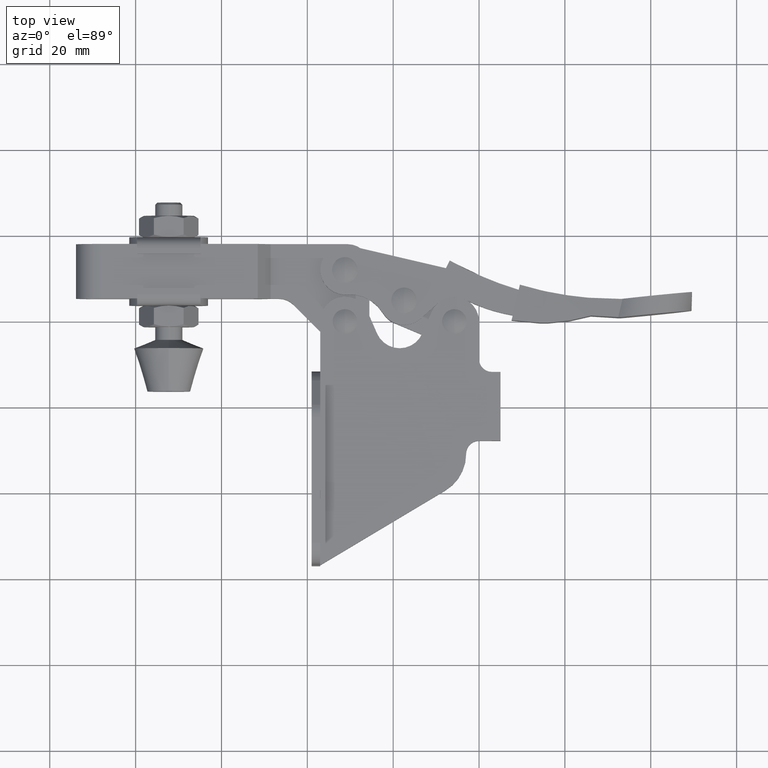
[diagram: clean part render]
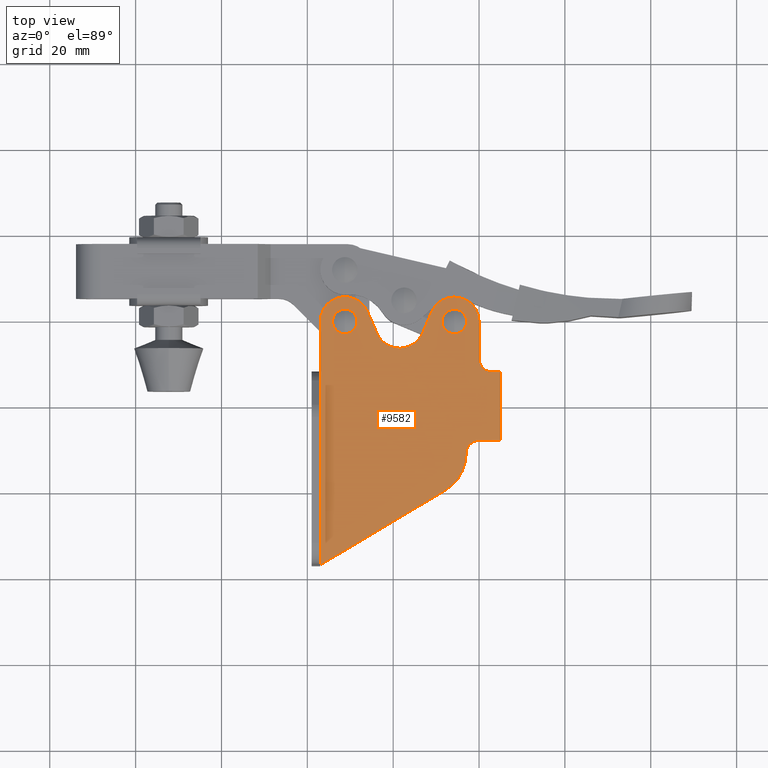
[diagram: same view with one face highlighted and labeled with its STEP entity id]
A machine part, top view. The second image highlights one B-rep face of the part: STEP entity #9582.
In plain terms, the highlighted planar face has unit normal (0, 0, 1).
Its self-contained STEP definition (entity closure, byte-faithful):
#41 = VERTEX_POINT ( 'NONE', #234 ) ;
#78 = CARTESIAN_POINT ( 'NONE',  ( -13.00215116450743800, -11.00340391243332900, 1.999999999999952300 ) ) ;
#187 = EDGE_CURVE ( 'NONE', #5799, #1288, #636, .T. ) ;
#204 = EDGE_CURVE ( 'NONE', #9637, #8520, #2228, .T. ) ;
#205 = VERTEX_POINT ( 'NONE', #4708 ) ;
#234 = CARTESIAN_POINT ( 'NONE',  ( -37.00215116450738200, 19.74659608756662600, 1.999999999999952300 ) ) ;
#255 = DIRECTION ( 'NONE',  ( 1.000000000000000000, 0.0000000000000000000, 0.0000000000000000000 ) ) ;
#295 = DIRECTION ( 'NONE',  ( -0.0000000000000000000, -0.0000000000000000000, -1.000000000000000000 ) ) ;
#326 = ORIENTED_EDGE ( 'NONE', *, *, #1156, .T. ) ;
#437 = ORIENTED_EDGE ( 'NONE', *, *, #204, .F. ) ;
#554 = CARTESIAN_POINT ( 'NONE',  ( -5.752151164507384200, 19.74937358451300900, 1.999999999999952300 ) ) ;
#558 = DIRECTION ( 'NONE',  ( 1.000000000000000000, 0.0000000000000000000, 0.0000000000000000000 ) ) ;
#570 = CARTESIAN_POINT ( 'NONE',  ( -18.49898377010197900, 19.24937358451300900, 1.999999999999952300 ) ) ;
#573 = DIRECTION ( 'NONE',  ( 1.000000000000000000, 0.0000000000000000000, 0.0000000000000000000 ) ) ;
#636 = CIRCLE ( 'NONE', #1303, 2.861817604250839400 ) ;
#672 = EDGE_LOOP ( 'NONE', ( #8195, #7583 ) ) ;
#707 = VERTEX_POINT ( 'NONE', #9681 ) ;
#718 = VERTEX_POINT ( 'NONE', #4884 ) ;
#797 = CARTESIAN_POINT ( 'NONE',  ( -5.751839451187371400, 16.88755599723832600, 1.999999999999954900 ) ) ;
#894 = EDGE_CURVE ( 'NONE', #4607, #1206, #7992, .T. ) ;
#956 = EDGE_CURVE ( 'NONE', #1206, #205, #3259, .T. ) ;
#966 = ORIENTED_EDGE ( 'NONE', *, *, #1118, .T. ) ;
#1013 = EDGE_CURVE ( 'NONE', #41, #718, #10114, .T. ) ;
#1016 = EDGE_CURVE ( 'NONE', #1288, #5799, #8447, .T. ) ;
#1028 = EDGE_CURVE ( 'NONE', #8520, #9637, #8947, .T. ) ;
#1031 = EDGE_CURVE ( 'NONE', #8399, #8984, #8713, .T. ) ;
#1034 = CARTESIAN_POINT ( 'NONE',  ( 4.997848835492618500, -8.003403912433308100, 1.999999999999952300 ) ) ;
#1041 = EDGE_CURVE ( 'NONE', #8984, #8821, #8806, .T. ) ;
#1053 = EDGE_CURVE ( 'NONE', #8821, #7351, #8843, .T. ) ;
#1069 = EDGE_CURVE ( 'NONE', #7351, #6382, #8685, .T. ) ;
#1084 = DIRECTION ( 'NONE',  ( 1.000000000000000000, 0.0000000000000000000, 0.0000000000000000000 ) ) ;
#1085 = EDGE_CURVE ( 'NONE', #6382, #3681, #1403, .T. ) ;
#1100 = EDGE_CURVE ( 'NONE', #3681, #2574, #7646, .T. ) ;
#1116 = EDGE_CURVE ( 'NONE', #2574, #41, #1905, .T. ) ;
#1118 = EDGE_CURVE ( 'NONE', #718, #4607, #7068, .T. ) ;
#1150 = DIRECTION ( 'NONE',  ( 1.000000000000000000, 0.0000000000000000000, 0.0000000000000000000 ) ) ;
#1153 = EDGE_CURVE ( 'NONE', #205, #3071, #7997, .T. ) ;
#1156 = EDGE_CURVE ( 'NONE', #3071, #707, #8507, .T. ) ;
#1168 = EDGE_CURVE ( 'NONE', #707, #8144, #8548, .T. ) ;
#1186 = EDGE_CURVE ( 'NONE', #8144, #8399, #8462, .T. ) ;
#1206 = VERTEX_POINT ( 'NONE', #8193 ) ;
#1251 = DIRECTION ( 'NONE',  ( 0.0000000000000000000, 0.0000000000000000000, 1.000000000000000000 ) ) ;
#1288 = VERTEX_POINT ( 'NONE', #4481 ) ;
#1295 = ORIENTED_EDGE ( 'NONE', *, *, #1153, .T. ) ;
#1303 = AXIS2_PLACEMENT_3D ( 'NONE', #9363, #4394, #9232 ) ;
#1343 = CARTESIAN_POINT ( 'NONE',  ( -31.25246272656215400, 22.60841367484146100, 1.999999999999952300 ) ) ;
#1403 = CIRCLE ( 'NONE', #4578, 5.749999999999994700 ) ;
#1665 = ORIENTED_EDGE ( 'NONE', *, *, #1186, .T. ) ;
#1858 = DIRECTION ( 'NONE',  ( 0.0000000000000000000, 0.0000000000000000000, 1.000000000000000000 ) ) ;
#1890 = DIRECTION ( 'NONE',  ( -7.459100059581651000E-017, -8.703951624101552100E-017, 1.000000000000000000 ) ) ;
#1905 = CIRCLE ( 'NONE', #10310, 5.750000151264498700 ) ;
#1958 = AXIS2_PLACEMENT_3D ( 'NONE', #2444, #1251, #1084 ) ;
#2101 = CARTESIAN_POINT ( 'NONE',  ( -7.870607530954615100, -19.58636726648207100, 1.999999999999952300 ) ) ;
#2178 = VECTOR ( 'NONE', #5035, 1000.000000000000000 ) ;
#2228 = CIRCLE ( 'NONE', #3330, 2.861817604250843900 ) ;
#2444 = CARTESIAN_POINT ( 'NONE',  ( -31.25215101324221900, 19.74659608756674700, 1.999999999999952300 ) ) ;
#2470 = AXIS2_PLACEMENT_3D ( 'NONE', #7174, #9751, #10360 ) ;
#2574 = VERTEX_POINT ( 'NONE', #3162 ) ;
#2637 = ORIENTED_EDGE ( 'NONE', *, *, #1053, .T. ) ;
#2904 = ORIENTED_EDGE ( 'NONE', *, *, #1041, .T. ) ;
#2923 = ORIENTED_EDGE ( 'NONE', *, *, #1028, .F. ) ;
#3071 = VERTEX_POINT ( 'NONE', #5989 ) ;
#3087 = DIRECTION ( 'NONE',  ( 1.000000000000000000, 0.0000000000000000000, 0.0000000000000000000 ) ) ;
#3162 = CARTESIAN_POINT ( 'NONE',  ( -25.97787765986170400, 22.03669266486529900, 1.999999999999952300 ) ) ;
#3172 = ORIENTED_EDGE ( 'NONE', *, *, #1100, .T. ) ;
#3250 = DIRECTION ( 'NONE',  ( -0.0000000000000000000, -0.0000000000000000000, -1.000000000000000000 ) ) ;
#3259 = CIRCLE ( 'NONE', #7177, 10.00000000000001200 ) ;
#3330 = AXIS2_PLACEMENT_3D ( 'NONE', #8258, #1890, #6399 ) ;
#3434 = VECTOR ( 'NONE', #5139, 1000.000000000000000 ) ;
#3681 = VERTEX_POINT ( 'NONE', #6354 ) ;
#3698 = CARTESIAN_POINT ( 'NONE',  ( -0.002151164507378788800, 10.99937358451308400, 1.999999999999952300 ) ) ;
#3848 = FACE_OUTER_BOUND ( 'NONE', #9092, .T. ) ;
#3957 = DIRECTION ( 'NONE',  ( 1.000000000000000000, 0.0000000000000000000, 0.0000000000000000000 ) ) ;
#4353 = CARTESIAN_POINT ( 'NONE',  ( -5.752151164507307800, 19.74937358451304100, 1.999999999999954900 ) ) ;
#4360 = FACE_BOUND ( 'NONE', #672, .T. ) ;
#4394 = DIRECTION ( 'NONE',  ( 0.0000000000000000000, 0.0000000000000000000, 1.000000000000000000 ) ) ;
#4444 = CARTESIAN_POINT ( 'NONE',  ( -13.22184944157300800, 16.96587773852139900, 1.999999999999952300 ) ) ;
#4481 = CARTESIAN_POINT ( 'NONE',  ( -31.25183929992228500, 16.88477850029203300, 1.999999999999952300 ) ) ;
#4578 = AXIS2_PLACEMENT_3D ( 'NONE', #570, #295, #3957 ) ;
#4607 = VERTEX_POINT ( 'NONE', #10597 ) ;
#4708 = CARTESIAN_POINT ( 'NONE',  ( -3.002151164507429900, -11.00340391243330100, 1.999999999999952300 ) ) ;
#4884 = CARTESIAN_POINT ( 'NONE',  ( -37.00215116450737400, 7.996596087565803800, 1.999999999999954000 ) ) ;
#5035 = DIRECTION ( 'NONE',  ( -1.000000000000000000, 0.0000000000000000000, 0.0000000000000000000 ) ) ;
#5103 = AXIS2_PLACEMENT_3D ( 'NONE', #10734, #3250, #573 ) ;
#5139 = DIRECTION ( 'NONE',  ( 0.0000000000000000000, -1.000000000000000000, 0.0000000000000000000 ) ) ;
#5338 = CARTESIAN_POINT ( 'NONE',  ( -37.00215116450737400, 19.74659608756662600, 1.999999999999952300 ) ) ;
#5375 = DIRECTION ( 'NONE',  ( 0.0000000000000000000, 0.0000000000000000000, 1.000000000000000000 ) ) ;
#5438 = EDGE_LOOP ( 'NONE', ( #437, #2923 ) ) ;
#5722 = DIRECTION ( 'NONE',  ( -0.3982776551397226900, 0.9172649068924441100, 0.0000000000000000000 ) ) ;
#5799 = VERTEX_POINT ( 'NONE', #1343 ) ;
#5866 = ORIENTED_EDGE ( 'NONE', *, *, #1031, .T. ) ;
#5989 = CARTESIAN_POINT ( 'NONE',  ( -0.002151164507427361100, -8.003403912433295600, 1.999999999999952300 ) ) ;
#6053 = VECTOR ( 'NONE', #10315, 1000.000000000000100 ) ;
#6111 = CARTESIAN_POINT ( 'NONE',  ( -0.002151164507427361100, -11.00340391243329400, 1.999999999999952300 ) ) ;
#6118 = CARTESIAN_POINT ( 'NONE',  ( 4.997848835492618500, 7.999373584513080900, 1.999999999999952300 ) ) ;
#6136 = DIRECTION ( 'NONE',  ( 0.0000000000000000000, -1.000000000000000000, 0.0000000000000000000 ) ) ;
#6309 = CARTESIAN_POINT ( 'NONE',  ( -11.02928549303636200, 22.03286943050462900, 1.999999999999952300 ) ) ;
#6354 = CARTESIAN_POINT ( 'NONE',  ( -23.77325698473353200, 16.95927706745961000, 1.999999999999952300 ) ) ;
#6378 = AXIS2_PLACEMENT_3D ( 'NONE', #554, #5375, #558 ) ;
#6382 = VERTEX_POINT ( 'NONE', #4444 ) ;
#6399 = DIRECTION ( 'NONE',  ( 0.9999999940680590600, 0.0001089214488981403900, 0.0000000000000000000 ) ) ;
#6779 = PLANE ( 'NONE',  #2470 ) ;
#6937 = DIRECTION ( 'NONE',  ( -0.3971297123463697300, -0.9177624919180831200, -0.0000000000000000000 ) ) ;
#7000 = ORIENTED_EDGE ( 'NONE', *, *, #1013, .T. ) ;
#7068 = LINE ( 'NONE', #9111, #3434 ) ;
#7174 = CARTESIAN_POINT ( 'NONE',  ( 2.997848835492623800, 10.99937358451308400, 1.999999999999952300 ) ) ;
#7177 = AXIS2_PLACEMENT_3D ( 'NONE', #78, #7569, #255 ) ;
#7351 = VERTEX_POINT ( 'NONE', #6309 ) ;
#7569 = DIRECTION ( 'NONE',  ( 0.0000000000000000000, 0.0000000000000000000, 1.000000000000000000 ) ) ;
#7583 = ORIENTED_EDGE ( 'NONE', *, *, #1016, .F. ) ;
#7588 = CARTESIAN_POINT ( 'NONE',  ( -23.77325698473353600, 16.95927706745960300, 1.999999999999952300 ) ) ;
#7646 = LINE ( 'NONE', #7588, #10230 ) ;
#7717 = VECTOR ( 'NONE', #7835, 1000.000000000000000 ) ;
#7835 = DIRECTION ( 'NONE',  ( 1.000000000000000000, -4.163336342344298400E-015, -0.0000000000000000000 ) ) ;
#7927 = VECTOR ( 'NONE', #10512, 1000.000000000000000 ) ;
#7992 = LINE ( 'NONE', #2101, #6053 ) ;
#7997 = CIRCLE ( 'NONE', #8385, 3.000000000000000900 ) ;
#8127 = FACE_BOUND ( 'NONE', #5438, .T. ) ;
#8144 = VERTEX_POINT ( 'NONE', #6118 ) ;
#8193 = CARTESIAN_POINT ( 'NONE',  ( -7.870607530954615100, -19.58636726648207100, 1.999999999999952300 ) ) ;
#8195 = ORIENTED_EDGE ( 'NONE', *, *, #187, .F. ) ;
#8258 = CARTESIAN_POINT ( 'NONE',  ( -5.752151164507307800, 19.74937358451304100, 1.999999999999954900 ) ) ;
#8385 = AXIS2_PLACEMENT_3D ( 'NONE', #6111, #9250, #1150 ) ;
#8399 = VERTEX_POINT ( 'NONE', #8729 ) ;
#8422 = ORIENTED_EDGE ( 'NONE', *, *, #1069, .T. ) ;
#8447 = CIRCLE ( 'NONE', #1958, 2.861817604250839400 ) ;
#8462 = LINE ( 'NONE', #9830, #2178 ) ;
#8505 = CARTESIAN_POINT ( 'NONE',  ( -31.25215101324288400, 19.74659608756662600, 1.999999999999952300 ) ) ;
#8507 = LINE ( 'NONE', #1034, #7717 ) ;
#8520 = VERTEX_POINT ( 'NONE', #797 ) ;
#8548 = LINE ( 'NONE', #9576, #7927 ) ;
#8551 = CARTESIAN_POINT ( 'NONE',  ( -0.002151164507385727700, 19.74937358451300900, 1.999999999999952300 ) ) ;
#8657 = ORIENTED_EDGE ( 'NONE', *, *, #956, .T. ) ;
#8671 = VECTOR ( 'NONE', #10499, 1000.000000000000000 ) ;
#8685 = LINE ( 'NONE', #10387, #9169 ) ;
#8692 = ORIENTED_EDGE ( 'NONE', *, *, #894, .T. ) ;
#8713 = CIRCLE ( 'NONE', #5103, 3.000000000000002700 ) ;
#8729 = CARTESIAN_POINT ( 'NONE',  ( 2.997848835492623800, 7.999373584513080900, 1.999999999999952300 ) ) ;
#8806 = LINE ( 'NONE', #3698, #8671 ) ;
#8821 = VERTEX_POINT ( 'NONE', #8551 ) ;
#8843 = CIRCLE ( 'NONE', #6378, 5.749999999999998200 ) ;
#8947 = CIRCLE ( 'NONE', #10178, 2.861817604250843900 ) ;
#8984 = VERTEX_POINT ( 'NONE', #10157 ) ;
#9092 = EDGE_LOOP ( 'NONE', ( #5866, #2904, #2637, #8422, #10031, #3172, #10543, #7000, #966, #8692, #8657, #1295, #326, #9745, #1665 ) ) ;
#9111 = CARTESIAN_POINT ( 'NONE',  ( -37.00215116450737400, 10.99937358451308400, 1.999999999999952300 ) ) ;
#9169 = VECTOR ( 'NONE', #6937, 1000.000000000000200 ) ;
#9178 = VECTOR ( 'NONE', #6136, 1000.000000000000000 ) ;
#9232 = DIRECTION ( 'NONE',  ( 1.000000000000000000, 0.0000000000000000000, 0.0000000000000000000 ) ) ;
#9250 = DIRECTION ( 'NONE',  ( -0.0000000000000000000, -0.0000000000000000000, -1.000000000000000000 ) ) ;
#9363 = CARTESIAN_POINT ( 'NONE',  ( -31.25215101324221900, 19.74659608756674700, 1.999999999999952300 ) ) ;
#9576 = CARTESIAN_POINT ( 'NONE',  ( 4.997848835492618500, -8.003403912433308100, 1.999999999999952300 ) ) ;
#9582 = ADVANCED_FACE ( 'NONE', ( #4360, #8127, #3848 ), #6779, .T. ) ;
#9637 = VERTEX_POINT ( 'NONE', #9724 ) ;
#9681 = CARTESIAN_POINT ( 'NONE',  ( 4.997848835492618500, -8.003403912433308100, 1.999999999999952300 ) ) ;
#9724 = CARTESIAN_POINT ( 'NONE',  ( -5.752462877827244200, 22.61119117178775200, 1.999999999999954900 ) ) ;
#9745 = ORIENTED_EDGE ( 'NONE', *, *, #1168, .T. ) ;
#9751 = DIRECTION ( 'NONE',  ( 0.0000000000000000000, 0.0000000000000000000, 1.000000000000000000 ) ) ;
#9830 = CARTESIAN_POINT ( 'NONE',  ( 4.997848835492618500, 7.999373584513080900, 1.999999999999952300 ) ) ;
#9909 = DIRECTION ( 'NONE',  ( -7.459100059581651000E-017, -8.703951624101552100E-017, 1.000000000000000000 ) ) ;
#10031 = ORIENTED_EDGE ( 'NONE', *, *, #1085, .T. ) ;
#10114 = LINE ( 'NONE', #5338, #9178 ) ;
#10157 = CARTESIAN_POINT ( 'NONE',  ( -0.002151164507378788800, 10.99937358451308400, 1.999999999999952300 ) ) ;
#10178 = AXIS2_PLACEMENT_3D ( 'NONE', #4353, #9909, #10356 ) ;
#10230 = VECTOR ( 'NONE', #5722, 999.9999999999998900 ) ;
#10310 = AXIS2_PLACEMENT_3D ( 'NONE', #8505, #1858, #3087 ) ;
#10315 = DIRECTION ( 'NONE',  ( 0.8582963354048737100, 0.5131543633552817500, -0.0000000000000000000 ) ) ;
#10356 = DIRECTION ( 'NONE',  ( 0.9999999940680590600, 0.0001089214488981403900, 0.0000000000000000000 ) ) ;
#10360 = DIRECTION ( 'NONE',  ( 1.000000000000000000, 0.0000000000000000000, -0.0000000000000000000 ) ) ;
#10387 = CARTESIAN_POINT ( 'NONE',  ( -13.22184944157300800, 16.96587773852139900, 1.999999999999952300 ) ) ;
#10499 = DIRECTION ( 'NONE',  ( -7.930164461608329500E-016, 1.000000000000000000, 0.0000000000000000000 ) ) ;
#10512 = DIRECTION ( 'NONE',  ( 0.0000000000000000000, 1.000000000000000000, 0.0000000000000000000 ) ) ;
#10543 = ORIENTED_EDGE ( 'NONE', *, *, #1116, .T. ) ;
#10597 = CARTESIAN_POINT ( 'NONE',  ( -37.00215116450737400, -37.00340391243416600, 1.999999999999952300 ) ) ;
#10734 = CARTESIAN_POINT ( 'NONE',  ( 2.997848835492623800, 10.99937358451308400, 1.999999999999952300 ) ) ;